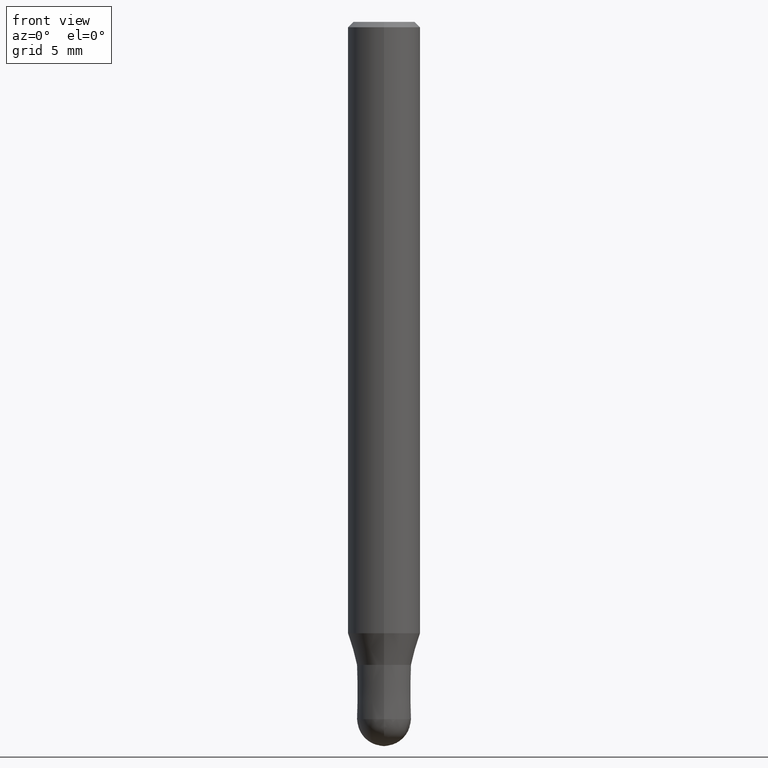
[diagram: clean part render]
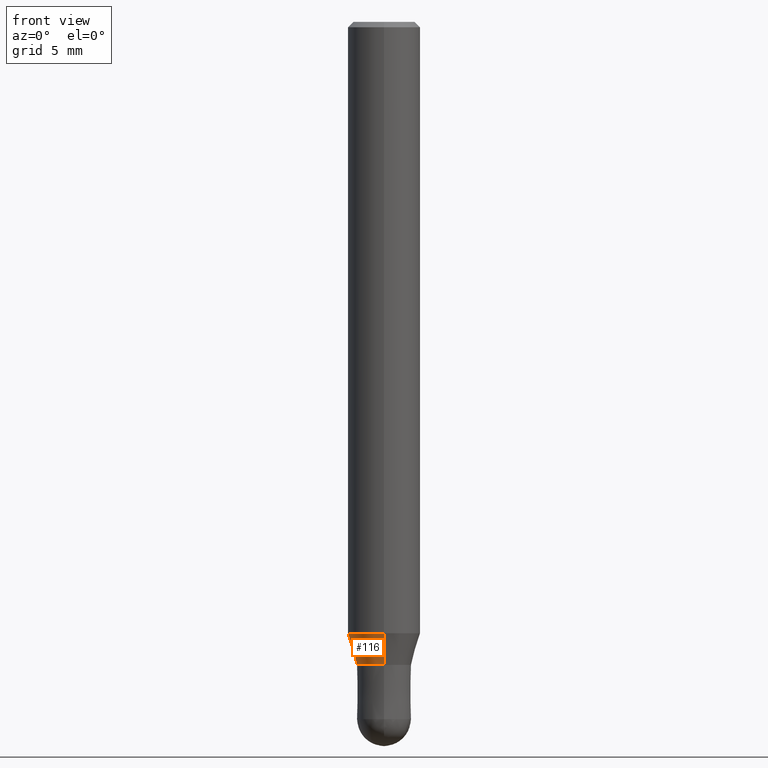
[diagram: same view with one face highlighted and labeled with its STEP entity id]
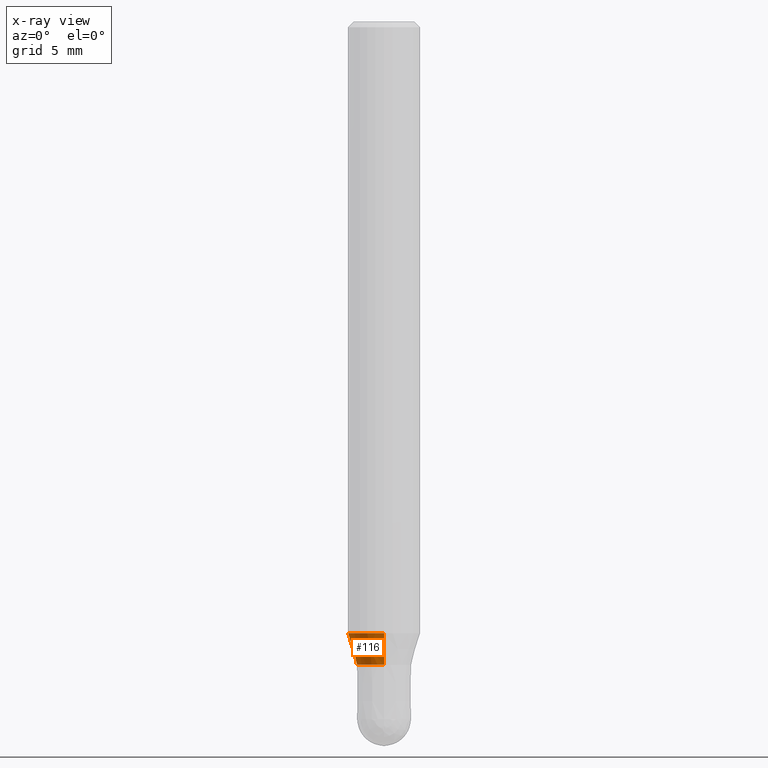
[diagram: x-ray of the same camera — body ghosted, the highlighted face saturated]
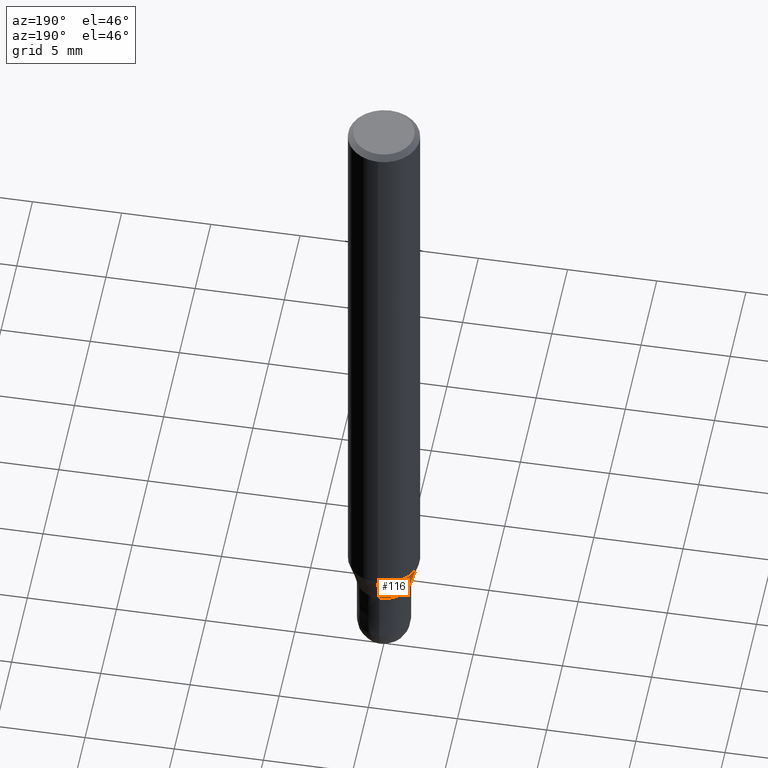
[diagram: same view with one face highlighted and labeled with its STEP entity id]
A machine part, front view. The second image highlights one B-rep face of the part: STEP entity #116.
The next image is the same camera in x-ray: the body ghosted, the highlighted face saturated — about 0% of this face is hidden behind the body in this view.
A second angle (auxiliary view) of the same face is appended — the face is thin or edge-on in the first view.
In plain terms, the highlighted conical surface has half-angle 15.997 deg.
Its self-contained STEP definition (entity closure, byte-faithful):
#90=EDGE_CURVE('',#148,#98,#215,.T.);
#98=VERTEX_POINT('',#223);
#112=EDGE_CURVE('',#154,#150,#241,.T.);
#116=ADVANCED_FACE('',(#245),#246,.T.);
#148=VERTEX_POINT('',#283);
#150=VERTEX_POINT('',#285);
#154=VERTEX_POINT('',#291);
#176=EDGE_CURVE('',#150,#148,#315,.T.);
#182=EDGE_CURVE('',#154,#98,#322,.T.);
#215=LINE('',#349,#350);
#223=CARTESIAN_POINT('',(0.0,1.49995,-35.5));
#241=LINE('',#379,#380);
#245=FACE_OUTER_BOUND('',#385,.T.);
#246=CONICAL_SURFACE('',#386,1.74995,0.279208199033747);
#283=CARTESIAN_POINT('',(0.0,1.99995,-33.756));
#285=CARTESIAN_POINT('',(2.44915147732706E-016,-1.99995,-33.756));
#291=CARTESIAN_POINT('',(1.83684830041587E-016,-1.49995,-35.5));
#315=CIRCLE('',#471,1.99995);
#322=CIRCLE('',#481,1.49995);
#349=CARTESIAN_POINT('',(-2.14299988887147E-016,1.74995,-34.628));
#350=VECTOR('',#496,1.0);
#379=CARTESIAN_POINT('',(2.14299988887147E-016,-1.74995,-34.628));
#380=VECTOR('',#531,1.0);
#385=EDGE_LOOP('',(#536,#537,#538,#539));
#386=AXIS2_PLACEMENT_3D('',#540,#541,#542);
#471=AXIS2_PLACEMENT_3D('',#629,#630,#631);
#481=AXIS2_PLACEMENT_3D('',#641,#642,#643);
#496=DIRECTION('',(3.37494895041124E-017,-0.275594597388538,-0.961273955691222));
#531=DIRECTION('',(3.37494895041124E-017,-0.275594597388538,0.961273955691222));
#536=ORIENTED_EDGE('',*,*,#90,.T.);
#537=ORIENTED_EDGE('',*,*,#182,.F.);
#538=ORIENTED_EDGE('',*,*,#112,.T.);
#539=ORIENTED_EDGE('',*,*,#176,.T.);
#540=CARTESIAN_POINT('',(0.0,0.0,-34.628));
#541=DIRECTION('',(-0.0,-0.0,1.0));
#542=DIRECTION('',(0.0,1.0,0.0));
#629=CARTESIAN_POINT('',(0.0,0.0,-33.756));
#630=DIRECTION('',(0.0,0.0,-1.0));
#631=DIRECTION('',(0.0,1.0,0.0));
#641=CARTESIAN_POINT('',(0.0,0.0,-35.5));
#642=DIRECTION('',(0.0,0.0,-1.0));
#643=DIRECTION('',(0.0,1.0,0.0));